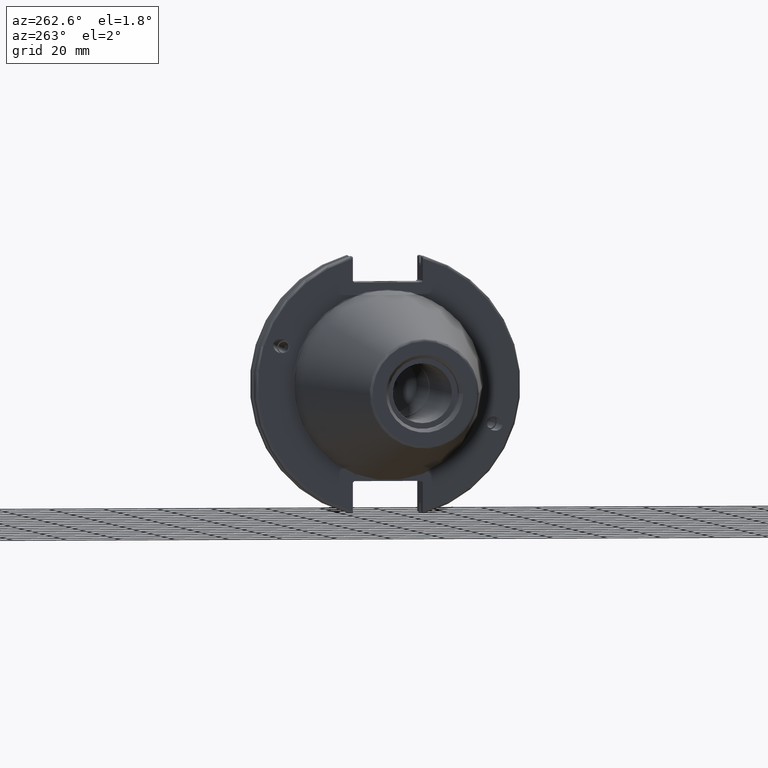
[diagram: clean part render]
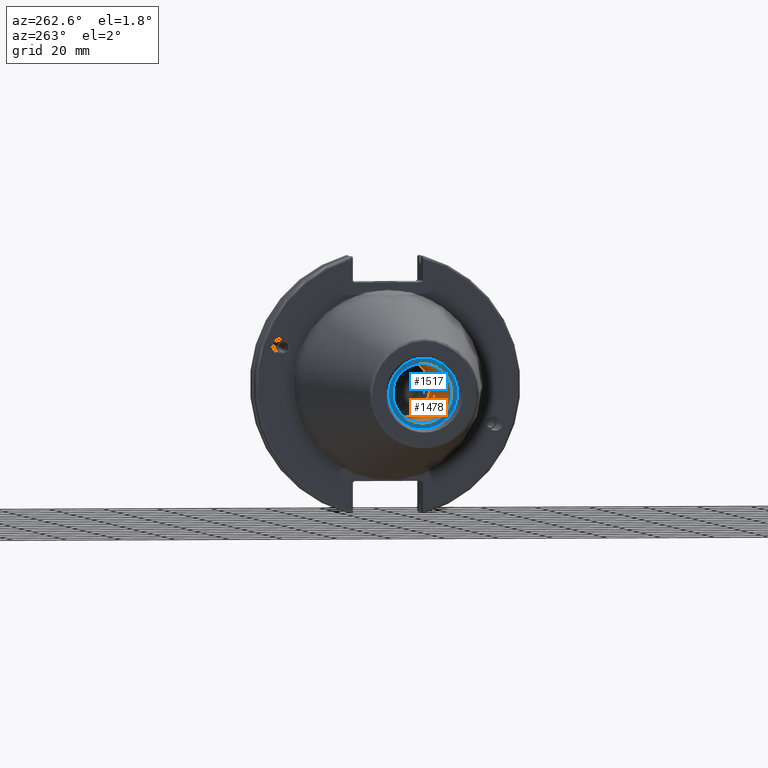
[diagram: same view with the hole feature highlighted: cylindrical wall and planar end face, labeled with their STEP entity ids]
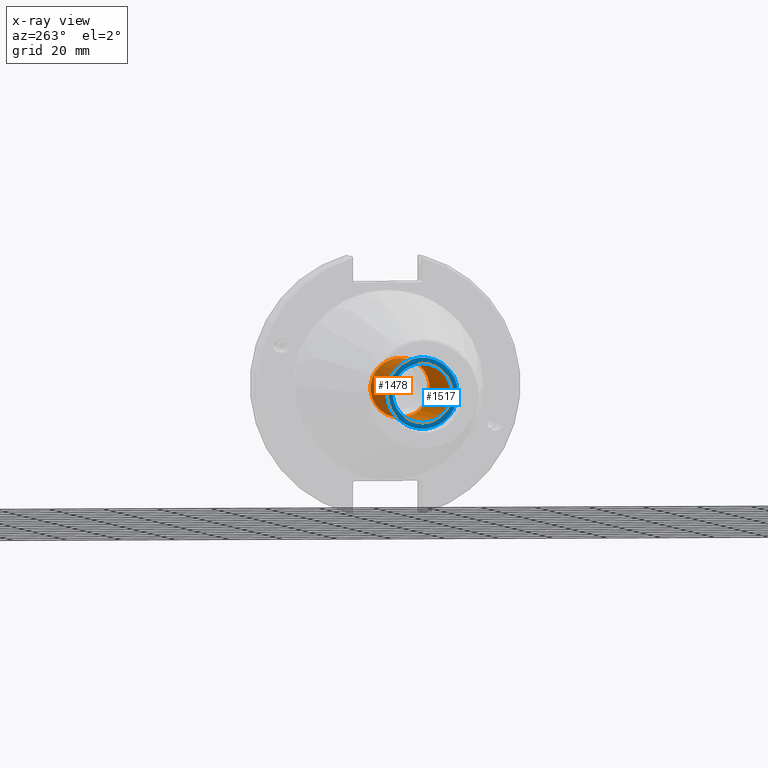
[diagram: x-ray of the same camera — body ghosted, the hole faces saturated]
A machine part, auxiliary view. The highlighted faces form one hole feature of diameter 21.971 mm: the cylindrical wall (entity #1478, orange) and its adjacent planar end face (entity #1517, blue) — they share a circular edge in the B-rep.
The next image is the same camera in x-ray (body ghosted, the hole faces saturated) — the bore reads through the body.
Wall:
#88=CYLINDRICAL_SURFACE('',#1631,10.9855);
#197=LINE('',#2738,#291);
#291=VECTOR('',#1926,10.9855);
#392=FACE_OUTER_BOUND('',#489,.T.);
#489=EDGE_LOOP('',(#1184,#1185,#1186,#1187));
#584=CIRCLE('',#1630,10.9855);
#585=CIRCLE('',#1632,10.9855);
#705=VERTEX_POINT('',#2732);
#706=VERTEX_POINT('',#2736);
#882=EDGE_CURVE('',#705,#705,#584,.T.);
#884=EDGE_CURVE('',#706,#706,#585,.T.);
#885=EDGE_CURVE('',#706,#705,#197,.T.);
#1184=ORIENTED_EDGE('',*,*,#884,.F.);
#1185=ORIENTED_EDGE('',*,*,#885,.T.);
#1186=ORIENTED_EDGE('',*,*,#882,.F.);
#1187=ORIENTED_EDGE('',*,*,#885,.F.);
#1478=ADVANCED_FACE('',(#392),#88,.F.);
#1630=AXIS2_PLACEMENT_3D('',#2733,#1919,#1920);
#1631=AXIS2_PLACEMENT_3D('',#2735,#1922,#1923);
#1632=AXIS2_PLACEMENT_3D('',#2737,#1924,#1925);
#1919=DIRECTION('center_axis',(-1.,0.,0.));
#1920=DIRECTION('ref_axis',(0.,0.,1.));
#1922=DIRECTION('center_axis',(-1.,0.,0.));
#1923=DIRECTION('ref_axis',(0.,0.,1.));
#1924=DIRECTION('center_axis',(1.,0.,0.));
#1925=DIRECTION('ref_axis',(0.,0.,1.));
#1926=DIRECTION('',(1.,0.,0.));
#2732=CARTESIAN_POINT('',(-31.6,-1.34533574120333E-15,-10.9855));
#2733=CARTESIAN_POINT('Origin',(-31.6,0.,0.));
#2735=CARTESIAN_POINT('Origin',(-66.6,0.,0.));
#2736=CARTESIAN_POINT('',(-95.25,1.34533574120333E-15,-10.9855));
#2737=CARTESIAN_POINT('Origin',(-95.25,0.,0.));
#2738=CARTESIAN_POINT('',(-66.6,-1.34533574120333E-15,-10.9855));
End face:
#115=FACE_BOUND('',#534,.T.);
#148=PLANE('',#1695);
#431=FACE_OUTER_BOUND('',#533,.T.);
#533=EDGE_LOOP('',(#1398));
#534=EDGE_LOOP('',(#1399));
#585=CIRCLE('',#1632,10.9855);
#610=CIRCLE('',#1696,13.1);
#706=VERTEX_POINT('',#2736);
#761=VERTEX_POINT('',#3036);
#884=EDGE_CURVE('',#706,#706,#585,.T.);
#978=EDGE_CURVE('',#761,#761,#610,.T.);
#1398=ORIENTED_EDGE('',*,*,#978,.F.);
#1399=ORIENTED_EDGE('',*,*,#884,.T.);
#1517=ADVANCED_FACE('',(#431,#115),#148,.T.);
#1632=AXIS2_PLACEMENT_3D('',#2737,#1924,#1925);
#1695=AXIS2_PLACEMENT_3D('',#3035,#2095,#2096);
#1696=AXIS2_PLACEMENT_3D('',#3037,#2097,#2098);
#1924=DIRECTION('center_axis',(1.,0.,0.));
#1925=DIRECTION('ref_axis',(0.,0.,1.));
#2095=DIRECTION('center_axis',(-1.,0.,0.));
#2096=DIRECTION('ref_axis',(0.,0.,1.));
#2097=DIRECTION('center_axis',(1.,0.,0.));
#2098=DIRECTION('ref_axis',(0.,0.,-1.));
#2736=CARTESIAN_POINT('',(-95.25,1.34533574120333E-15,-10.9855));
#2737=CARTESIAN_POINT('Origin',(-95.25,0.,0.));
#3035=CARTESIAN_POINT('Origin',(-95.25,13.1,0.));
#3036=CARTESIAN_POINT('',(-95.25,-13.1,-1.60428730688303E-15));
#3037=CARTESIAN_POINT('Origin',(-95.25,0.,0.));